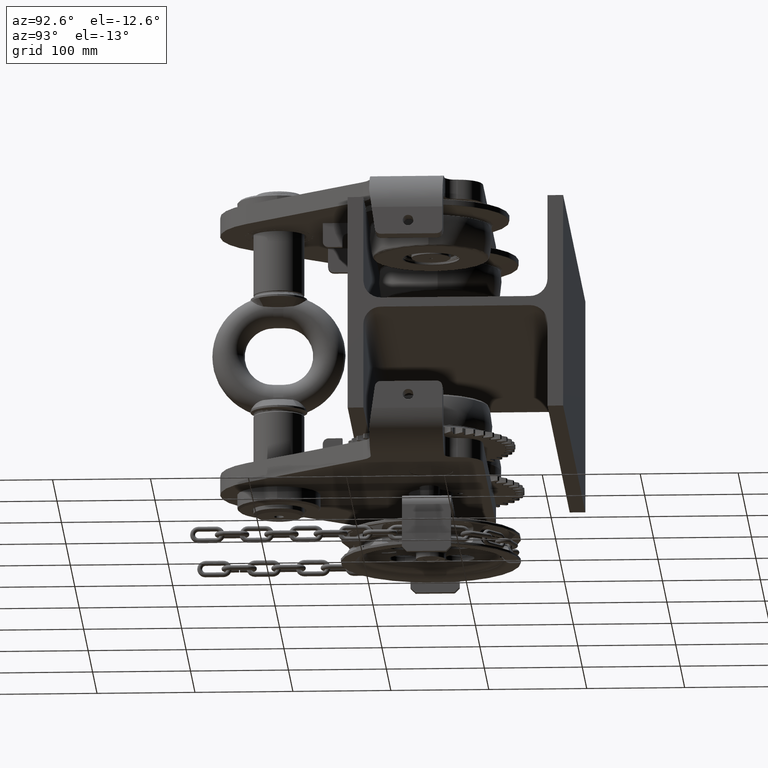
[diagram: clean part render]
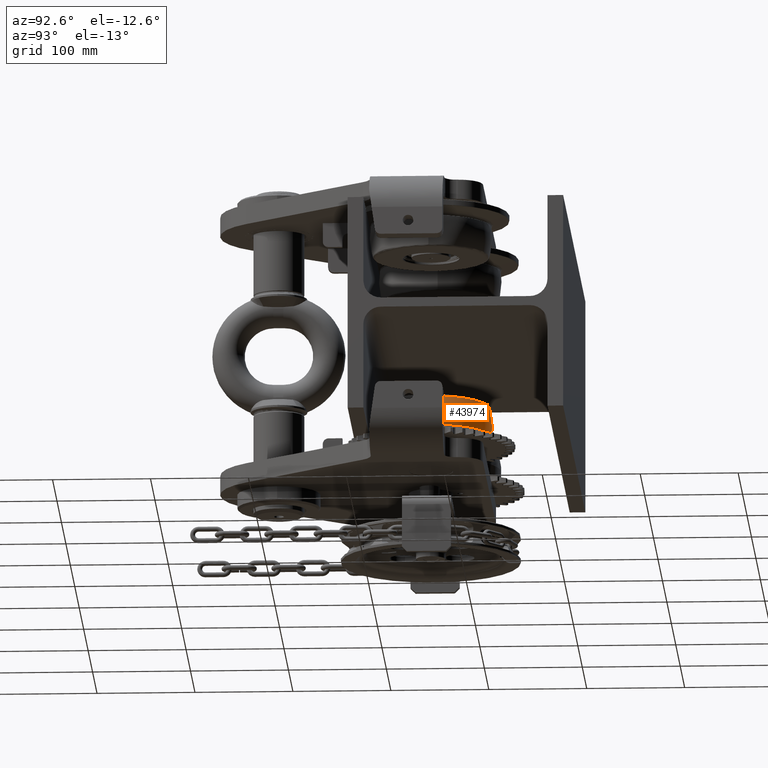
[diagram: same view with one face highlighted and labeled with its STEP entity id]
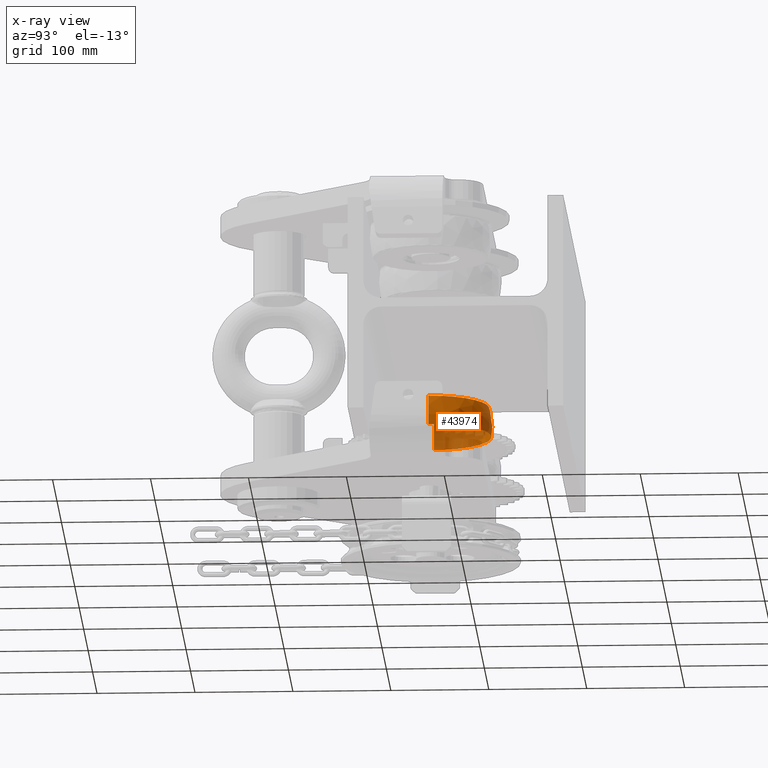
[diagram: x-ray of the same camera — body ghosted, the highlighted face saturated]
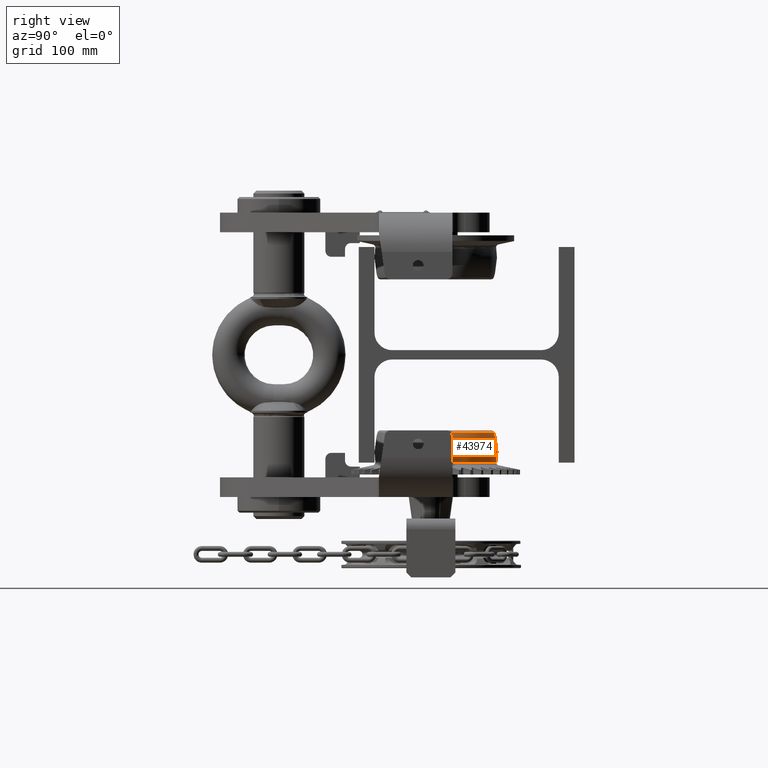
[diagram: same view with one face highlighted and labeled with its STEP entity id]
A machine part, auxiliary view. The second image highlights one B-rep face of the part: STEP entity #43974.
The next image is the same camera in x-ray: the body ghosted, the highlighted face saturated — about 37% of this face is hidden behind the body in this view.
A second angle (right view) of the same face is appended — the face is thin or edge-on in the first view.
In plain terms, the highlighted spherical surface has radius 62.5 mm.
Its self-contained STEP definition (entity closure, byte-faithful):
#610 = EDGE_CURVE ( 'NONE', #63427, #68379, #25714, .T. ) ;
#773 = CARTESIAN_POINT ( 'NONE',  ( 104.5000000000032000, -31.49999999999979700, -98.99999999999886300 ) ) ;
#1494 = VERTEX_POINT ( 'NONE', #114238 ) ;
#8926 = CARTESIAN_POINT ( 'NONE',  ( 104.5000000000032000, -31.49999999999979700, -98.99999999999886300 ) ) ;
#9155 = DIRECTION ( 'NONE',  ( -1.000000000000000000, -6.661338147750939200E-016, 0.0000000000000000000 ) ) ;
#9730 = CIRCLE ( 'NONE', #115437, 59.22777141558569300 ) ;
#13671 = EDGE_CURVE ( 'NONE', #129537, #63427, #19075, .T. ) ;
#14094 = CARTESIAN_POINT ( 'NONE',  ( 45.27222858441753300, -31.49999999999983300, -79.04201680672169100 ) ) ;
#19036 = DIRECTION ( 'NONE',  ( -5.551115123125780700E-016, 1.000000000000000000, 3.179572494247383200E-016 ) ) ;
#19075 = CIRCLE ( 'NONE', #120947, 61.66435715962548900 ) ;
#19422 = VERTEX_POINT ( 'NONE', #93379 ) ;
#20175 = ORIENTED_EDGE ( 'NONE', *, *, #83425, .T. ) ;
#20749 = CIRCLE ( 'NONE', #32525, 62.50000000000000000 ) ;
#22873 = CIRCLE ( 'NONE', #107105, 62.50000000000000000 ) ;
#23789 = ORIENTED_EDGE ( 'NONE', *, *, #73020, .F. ) ;
#25546 = DIRECTION ( 'NONE',  ( 2.484854187592832900E-015, 3.179572494247397000E-016, -1.000000000000000000 ) ) ;
#25714 = CIRCLE ( 'NONE', #122669, 61.66435715962548900 ) ;
#25999 = EDGE_CURVE ( 'NONE', #1494, #68379, #20749, .T. ) ;
#27313 = ORIENTED_EDGE ( 'NONE', *, *, #25999, .T. ) ;
#29544 = DIRECTION ( 'NONE',  ( -1.000000000000000000, -5.551115123125772800E-016, -2.442490654175340100E-015 ) ) ;
#30686 = DIRECTION ( 'NONE',  ( 2.484854187592832900E-015, 3.179572494247397000E-016, -1.000000000000000000 ) ) ;
#32525 = AXIS2_PLACEMENT_3D ( 'NONE', #773, #80809, #9155 ) ;
#36525 = DIRECTION ( 'NONE',  ( 1.000000000000000000, 5.551115123125782700E-016, 0.0000000000000000000 ) ) ;
#43029 = AXIS2_PLACEMENT_3D ( 'NONE', #8926, #19036, #29544 ) ;
#43974 = ADVANCED_FACE ( 'NONE', ( #112943 ), #57645, .T. ) ;
#46603 = CARTESIAN_POINT ( 'NONE',  ( 104.5000000000032000, -31.49999999999979700, -98.99999999999886300 ) ) ;
#54859 = CARTESIAN_POINT ( 'NONE',  ( 42.83564284037777300, -31.49999999999983300, -109.1861207576846900 ) ) ;
#57645 = SPHERICAL_SURFACE ( 'NONE', #43029, 62.50000000000000000 ) ;
#63427 = VERTEX_POINT ( 'NONE', #71375 ) ;
#63808 = DIRECTION ( 'NONE',  ( 0.0000000000000000000, -1.000000000000000000, -2.343121727548664700E-016 ) ) ;
#66329 = CARTESIAN_POINT ( 'NONE',  ( 104.5000000000032300, -31.49999999999979700, -109.1861207576845300 ) ) ;
#66738 = ORIENTED_EDGE ( 'NONE', *, *, #610, .F. ) ;
#67425 = EDGE_CURVE ( 'NONE', #19422, #1494, #76690, .T. ) ;
#68379 = VERTEX_POINT ( 'NONE', #123002 ) ;
#71375 = CARTESIAN_POINT ( 'NONE',  ( 104.5000000000032300, 30.16435715962569500, -109.1861207576845200 ) ) ;
#72166 = CARTESIAN_POINT ( 'NONE',  ( 104.5000000000031400, -31.49999999999980500, -79.04201680672154900 ) ) ;
#73020 = EDGE_CURVE ( 'NONE', #126433, #129537, #22873, .T. ) ;
#76690 = CIRCLE ( 'NONE', #115266, 59.22777141558569300 ) ;
#77003 = DIRECTION ( 'NONE',  ( 5.828670879282061000E-016, -1.000000000000000000, -3.179572494247382700E-016 ) ) ;
#80809 = DIRECTION ( 'NONE',  ( -7.053317678429413500E-016, 1.000000000000000000, 3.179572494247379200E-016 ) ) ;
#81938 = DIRECTION ( 'NONE',  ( 2.484854187592832900E-015, 3.179572494247397000E-016, -1.000000000000000000 ) ) ;
#83265 = DIRECTION ( 'NONE',  ( 0.0000000000000000000, -1.000000000000000000, -2.343121727548664700E-016 ) ) ;
#83425 = EDGE_CURVE ( 'NONE', #126433, #19422, #9730, .T. ) ;
#85680 = EDGE_LOOP ( 'NONE', ( #111949, #27313, #66738, #106716, #23789, #20175 ) ) ;
#90129 = DIRECTION ( 'NONE',  ( 0.0000000000000000000, -1.000000000000000000, -2.250536362827907400E-016 ) ) ;
#93379 = CARTESIAN_POINT ( 'NONE',  ( 104.5000000000031400, 27.72777141558588500, -79.04201680672153400 ) ) ;
#101526 = CARTESIAN_POINT ( 'NONE',  ( 104.5000000000032300, -31.49999999999979700, -109.1861207576845300 ) ) ;
#106716 = ORIENTED_EDGE ( 'NONE', *, *, #13671, .F. ) ;
#106881 = DIRECTION ( 'NONE',  ( 0.0000000000000000000, -1.000000000000000000, -2.250536362827907400E-016 ) ) ;
#107105 = AXIS2_PLACEMENT_3D ( 'NONE', #46603, #77003, #36525 ) ;
#111949 = ORIENTED_EDGE ( 'NONE', *, *, #67425, .T. ) ;
#112943 = FACE_OUTER_BOUND ( 'NONE', #85680, .T. ) ;
#114238 = CARTESIAN_POINT ( 'NONE',  ( 163.7277714155887600, -31.49999999999975800, -79.04201680672139200 ) ) ;
#115266 = AXIS2_PLACEMENT_3D ( 'NONE', #72166, #81938, #83265 ) ;
#115437 = AXIS2_PLACEMENT_3D ( 'NONE', #124221, #124650, #63808 ) ;
#120947 = AXIS2_PLACEMENT_3D ( 'NONE', #101526, #30686, #90129 ) ;
#122669 = AXIS2_PLACEMENT_3D ( 'NONE', #66329, #25546, #106881 ) ;
#123002 = CARTESIAN_POINT ( 'NONE',  ( 166.1643571596286800, -31.49999999999975800, -109.1861207576843800 ) ) ;
#124221 = CARTESIAN_POINT ( 'NONE',  ( 104.5000000000031400, -31.49999999999980500, -79.04201680672154900 ) ) ;
#124650 = DIRECTION ( 'NONE',  ( 2.484854187592832900E-015, 3.179572494247397000E-016, -1.000000000000000000 ) ) ;
#126433 = VERTEX_POINT ( 'NONE', #14094 ) ;
#129537 = VERTEX_POINT ( 'NONE', #54859 ) ;